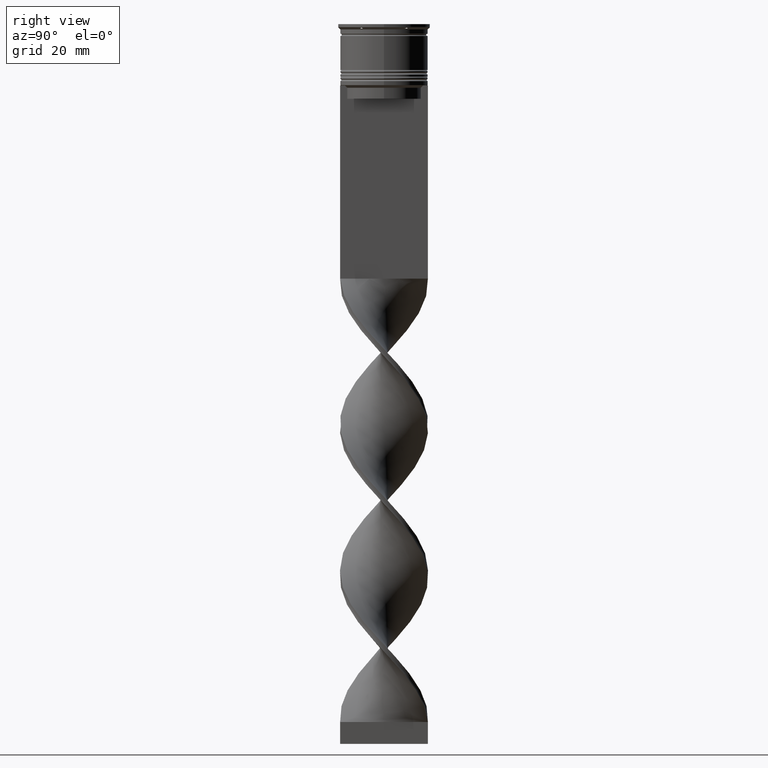
[diagram: clean part render]
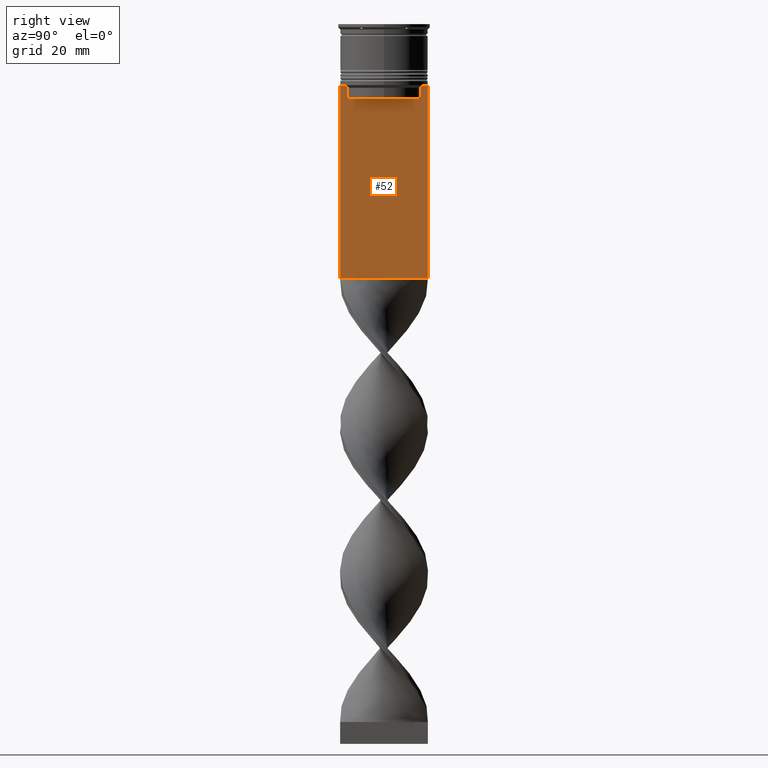
[diagram: same view with one face highlighted and labeled with its STEP entity id]
A machine part, right view. The second image highlights one B-rep face of the part: STEP entity #52.
In plain terms, the highlighted planar face has unit normal (-1, 0, 0).
Its self-contained STEP definition (entity closure, byte-faithful):
#25 = DIRECTION ( 'NONE',  ( 0.000000000000000000, -1.000000000000000000, 0.000000000000000000 ) ) ;
#52 = ADVANCED_FACE ( 'NONE', ( #1105 ), #2876, .F. ) ;
#111 = EDGE_CURVE ( 'NONE', #3831, #3094, #2121, .T. ) ;
#152 = ORIENTED_EDGE ( 'NONE', *, *, #2106, .T. ) ;
#168 = CARTESIAN_POINT ( 'NONE',  ( 0.7500000000000001110, -10.00000000000000533, 6.056171120131581098 ) ) ;
#174 = LINE ( 'NONE', #3499, #3260 ) ;
#292 = CARTESIAN_POINT ( 'NONE',  ( 0.7500000000000001110, 8.868342573446296839, -14.00000000000000178 ) ) ;
#414 = CARTESIAN_POINT ( 'NONE',  ( 0.7500000000000002220, 9.999999999999998224, -58.00000000000000000 ) ) ;
#427 = ORIENTED_EDGE ( 'NONE', *, *, #1748, .T. ) ;
#451 = CARTESIAN_POINT ( 'NONE',  ( 0.7500000000000001110, -10.00000000000000533, -58.00000000000000000 ) ) ;
#455 = VECTOR ( 'NONE', #1125, 1000.000000000000000 ) ;
#475 = CARTESIAN_POINT ( 'NONE',  ( 0.7500000000000001110, -8.868342573446296839, -14.00000000000000178 ) ) ;
#534 = EDGE_CURVE ( 'NONE', #961, #1540, #2239, .T. ) ;
#542 = LINE ( 'NONE', #2065, #455 ) ;
#556 = CARTESIAN_POINT ( 'NONE',  ( 0.7500000000000001110, -10.00000000000000533, -14.00000000000000178 ) ) ;
#577 = DIRECTION ( 'NONE',  ( 0.000000000000000000, -1.000000000000000000, 0.000000000000000000 ) ) ;
#614 = ORIENTED_EDGE ( 'NONE', *, *, #3842, .T. ) ;
#635 = CARTESIAN_POINT ( 'NONE',  ( 0.7500000000000001110, -10.00000000000000533, -14.00000000000000178 ) ) ;
#696 = ORIENTED_EDGE ( 'NONE', *, *, #534, .T. ) ;
#745 = CARTESIAN_POINT ( 'NONE',  ( 0.7500000000000001110, 8.366450860430608927, -17.00000000000000000 ) ) ;
#785 = CARTESIAN_POINT ( 'NONE',  ( 0.7500000000000001110, 8.366450860430608927, -14.50000000000000000 ) ) ;
#845 = DIRECTION ( 'NONE',  ( 0.000000000000000000, -1.000000000000000000, 0.000000000000000000 ) ) ;
#895 = DIRECTION ( 'NONE',  ( -0.000000000000000000, -0.000000000000000000, 1.000000000000000000 ) ) ;
#961 = VERTEX_POINT ( 'NONE', #2513 ) ;
#969 = VERTEX_POINT ( 'NONE', #3725 ) ;
#978 = CARTESIAN_POINT ( 'NONE',  ( 0.7500000000000001110, 8.366450860430608927, -14.50000000000000000 ) ) ;
#1005 = ORIENTED_EDGE ( 'NONE', *, *, #111, .T. ) ;
#1076 = CARTESIAN_POINT ( 'NONE',  ( 0.7500000000000001110, -8.366450860430608927, -14.50000000000000000 ) ) ;
#1085 = VECTOR ( 'NONE', #1333, 1000.000000000000000 ) ;
#1105 = FACE_OUTER_BOUND ( 'NONE', #2052, .T. ) ;
#1125 = DIRECTION ( 'NONE',  ( 0.000000000000000000, 0.000000000000000000, -1.000000000000000000 ) ) ;
#1143 = LINE ( 'NONE', #1429, #3573 ) ;
#1333 = DIRECTION ( 'NONE',  ( 0.000000000000000000, 0.000000000000000000, -1.000000000000000000 ) ) ;
#1373 = CARTESIAN_POINT ( 'NONE',  ( 0.7500000000000001110, -10.00000000000000533, 6.056171120131581098 ) ) ;
#1382 = DIRECTION ( 'NONE',  ( 0.000000000000000000, 0.000000000000000000, 1.000000000000000000 ) ) ;
#1421 = EDGE_CURVE ( 'NONE', #969, #1695, #1974, .T. ) ;
#1424 = CARTESIAN_POINT ( 'NONE',  ( 0.7500000000000001110, -10.00000000000000533, -14.00000000000000178 ) ) ;
#1429 = CARTESIAN_POINT ( 'NONE',  ( 0.7500000000000001110, 8.400000000000003908, -17.00000000000000000 ) ) ;
#1459 = ORIENTED_EDGE ( 'NONE', *, *, #2974, .T. ) ;
#1500 = VERTEX_POINT ( 'NONE', #1654 ) ;
#1538 = VECTOR ( 'NONE', #577, 1000.000000000000000 ) ;
#1540 = VERTEX_POINT ( 'NONE', #2848 ) ;
#1618 = CARTESIAN_POINT ( 'NONE',  ( 0.7500000000000001110, 9.999999999999998224, -14.00000000000000178 ) ) ;
#1654 = CARTESIAN_POINT ( 'NONE',  ( 0.7500000000000001110, 8.868342573446296839, -14.00000000000000178 ) ) ;
#1695 = VERTEX_POINT ( 'NONE', #451 ) ;
#1736 = VERTEX_POINT ( 'NONE', #745 ) ;
#1748 = EDGE_CURVE ( 'NONE', #1695, #3740, #1969, .T. ) ;
#1776 = VERTEX_POINT ( 'NONE', #2824 ) ;
#1792 = VECTOR ( 'NONE', #895, 1000.000000000000000 ) ;
#1855 = VECTOR ( 'NONE', #25, 1000.000000000000000 ) ;
#1944 = VERTEX_POINT ( 'NONE', #785 ) ;
#1969 = LINE ( 'NONE', #2504, #3441 ) ;
#1974 = LINE ( 'NONE', #1373, #1085 ) ;
#2052 = EDGE_LOOP ( 'NONE', ( #3074, #3783, #614, #1459, #3186, #696, #2146, #152, #3750, #427, #3413, #1005 ) ) ;
#2065 = CARTESIAN_POINT ( 'NONE',  ( 0.7500000000000001110, 9.999999999999998224, 6.056171120131581098 ) ) ;
#2097 = DIRECTION ( 'NONE',  ( 0.000000000000000000, -1.000000000000000000, 0.000000000000000000 ) ) ;
#2106 = EDGE_CURVE ( 'NONE', #1776, #969, #3194, .T. ) ;
#2121 = LINE ( 'NONE', #556, #2589 ) ;
#2146 = ORIENTED_EDGE ( 'NONE', *, *, #2314, .T. ) ;
#2188 = VERTEX_POINT ( 'NONE', #2931 ) ;
#2219 = EDGE_CURVE ( 'NONE', #3094, #1500, #2634, .T. ) ;
#2239 = B_SPLINE_CURVE_WITH_KNOTS ( 'NONE', 3,
 ( #1076, #3840, #3525, #475 ),
 .UNSPECIFIED., .F., .F.,
 ( 4, 4 ),
 ( 0.03866293624047253963, 0.03937282246709320616 ),
 .UNSPECIFIED. ) ;
#2314 = EDGE_CURVE ( 'NONE', #1540, #1776, #2728, .T. ) ;
#2321 = EDGE_CURVE ( 'NONE', #2188, #961, #3348, .T. ) ;
#2504 = CARTESIAN_POINT ( 'NONE',  ( 0.7500000000000001110, -10.00000000000000533, -58.00000000000000000 ) ) ;
#2513 = CARTESIAN_POINT ( 'NONE',  ( 0.7500000000000001110, -8.366450860430608927, -14.50000000000000000 ) ) ;
#2589 = VECTOR ( 'NONE', #2968, 1000.000000000000000 ) ;
#2612 = VECTOR ( 'NONE', #2097, 1000.000000000000000 ) ;
#2615 = EDGE_CURVE ( 'NONE', #1500, #1944, #3844, .T. ) ;
#2634 = LINE ( 'NONE', #1424, #2612 ) ;
#2639 = CARTESIAN_POINT ( 'NONE',  ( 0.7500000000000001110, 9.871550030263739117, -14.00000000000000178 ) ) ;
#2728 = LINE ( 'NONE', #635, #1855 ) ;
#2824 = CARTESIAN_POINT ( 'NONE',  ( 0.7500000000000001110, -9.871550030263739117, -14.00000000000000178 ) ) ;
#2848 = CARTESIAN_POINT ( 'NONE',  ( 0.7500000000000001110, -8.868342573446296839, -14.00000000000000178 ) ) ;
#2876 = PLANE ( 'NONE',  #3418 ) ;
#2894 = CARTESIAN_POINT ( 'NONE',  ( 0.7500000000000001110, -10.00000000000000533, -14.00000000000000178 ) ) ;
#2931 = CARTESIAN_POINT ( 'NONE',  ( 0.7500000000000001110, -8.366450860430608927, -17.00000000000000000 ) ) ;
#2968 = DIRECTION ( 'NONE',  ( 0.000000000000000000, -1.000000000000000000, 0.000000000000000000 ) ) ;
#2974 = EDGE_CURVE ( 'NONE', #1736, #2188, #1143, .T. ) ;
#3025 = EDGE_CURVE ( 'NONE', #3831, #3740, #542, .T. ) ;
#3074 = ORIENTED_EDGE ( 'NONE', *, *, #2219, .T. ) ;
#3094 = VERTEX_POINT ( 'NONE', #2639 ) ;
#3179 = DIRECTION ( 'NONE',  ( 0.000000000000000000, 1.000000000000000000, 0.000000000000000000 ) ) ;
#3186 = ORIENTED_EDGE ( 'NONE', *, *, #2321, .T. ) ;
#3194 = LINE ( 'NONE', #2894, #1538 ) ;
#3260 = VECTOR ( 'NONE', #3720, 1000.000000000000000 ) ;
#3348 = LINE ( 'NONE', #3620, #1792 ) ;
#3362 = CARTESIAN_POINT ( 'NONE',  ( 0.7500000000000001110, 8.701063075415250481, -14.16668448247791545 ) ) ;
#3413 = ORIENTED_EDGE ( 'NONE', *, *, #3025, .F. ) ;
#3418 = AXIS2_PLACEMENT_3D ( 'NONE', #168, #3490, #1382 ) ;
#3441 = VECTOR ( 'NONE', #3179, 1000.000000000000000 ) ;
#3490 = DIRECTION ( 'NONE',  ( -1.000000000000000000, 0.000000000000000000, 0.000000000000000000 ) ) ;
#3499 = CARTESIAN_POINT ( 'NONE',  ( 0.7500000000000001110, 8.366450860430608927, 0.000000000000000000 ) ) ;
#3525 = CARTESIAN_POINT ( 'NONE',  ( 0.7500000000000001110, -8.701063080777121428, -14.16668447713511725 ) ) ;
#3573 = VECTOR ( 'NONE', #845, 1000.000000000000000 ) ;
#3620 = CARTESIAN_POINT ( 'NONE',  ( 0.7500000000000001110, -8.366450860430608927, 0.000000000000000000 ) ) ;
#3720 = DIRECTION ( 'NONE',  ( 0.000000000000000000, 0.000000000000000000, -1.000000000000000000 ) ) ;
#3725 = CARTESIAN_POINT ( 'NONE',  ( 0.7500000000000001110, -10.00000000000000533, -14.00000000000000178 ) ) ;
#3740 = VERTEX_POINT ( 'NONE', #414 ) ;
#3750 = ORIENTED_EDGE ( 'NONE', *, *, #1421, .T. ) ;
#3783 = ORIENTED_EDGE ( 'NONE', *, *, #2615, .T. ) ;
#3831 = VERTEX_POINT ( 'NONE', #1618 ) ;
#3840 = CARTESIAN_POINT ( 'NONE',  ( 0.7500000000000001110, -8.533766903463440912, -14.33335220807192023 ) ) ;
#3842 = EDGE_CURVE ( 'NONE', #1944, #1736, #174, .T. ) ;
#3844 = B_SPLINE_CURVE_WITH_KNOTS ( 'NONE', 3,
 ( #292, #3362, #3932, #978 ),
 .UNSPECIFIED., .F., .F.,
 ( 4, 4 ),
 ( 0.01512225952876174867, 0.01583070519299695222 ),
 .UNSPECIFIED. ) ;
#3932 = CARTESIAN_POINT ( 'NONE',  ( 0.7500000000000001110, 8.533766897779925031, -14.33335221373273605 ) ) ;